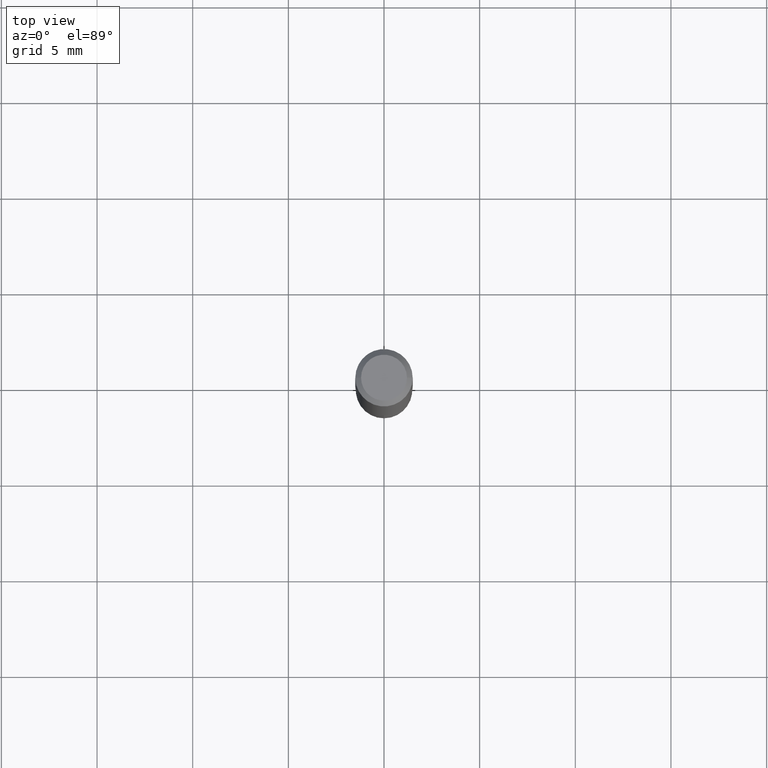
[diagram: clean part render]
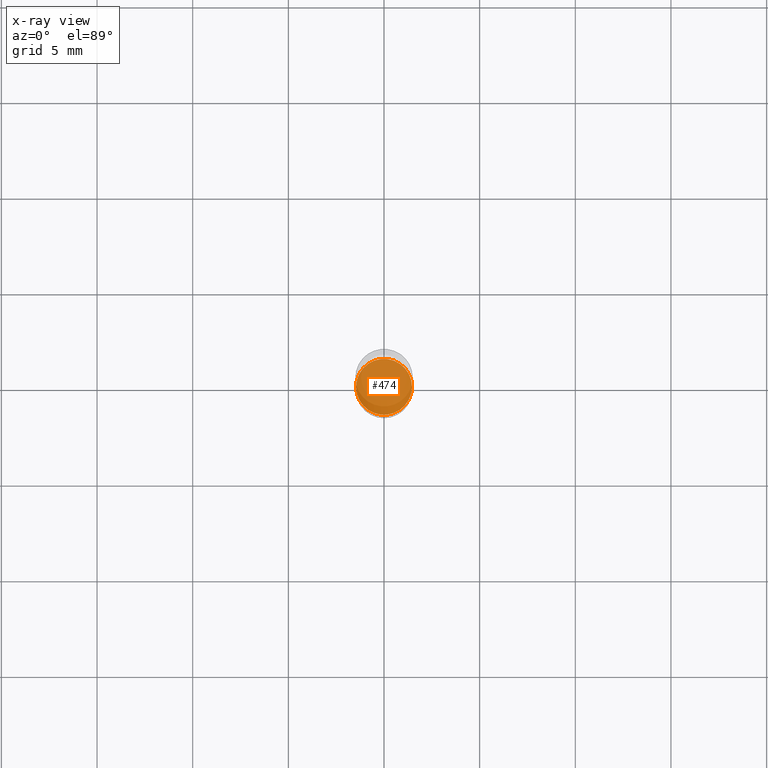
[diagram: x-ray — body ghosted, one internal face saturated and labeled with its STEP entity id]
A machine part, top view, then the same camera in x-ray: the body is ghosted and one INTERNAL B-rep face — a face not visible from any outside direction — is saturated and labeled: STEP entity #474.
In plain terms, the highlighted planar face has unit normal (-0, 0, 1).
Its self-contained STEP definition (entity closure, byte-faithful):
#2 = CIRCLE ( 'NONE', #252, 0.05754999999999999699 ) ;
#19 = DIRECTION ( 'NONE',  ( -2.445468806185136597E-29, 3.491481338843145583E-15, 1.000000000000000000 ) ) ;
#33 = DIRECTION ( 'NONE',  ( 1.000000000000000000, -6.982962677686262766E-15, 0.000000000000000000 ) ) ;
#59 = CIRCLE ( 'NONE', #240, 0.05754999999999999699 ) ;
#101 = DIRECTION ( 'NONE',  ( 1.000000000000000000, -6.982962677686265922E-15, 4.876176775795935793E-29 ) ) ;
#105 = CARTESIAN_POINT ( 'NONE',  ( 2.676565608369631794E-29, -3.821426325363822773E-15, -1.094499999999999806 ) ) ;
#110 = FACE_OUTER_BOUND ( 'NONE', #471, .T. ) ;
#135 = ORIENTED_EDGE ( 'NONE', *, *, #320, .F. ) ;
#154 = CARTESIAN_POINT ( 'NONE',  ( 0.05754999999999999699, -4.223295827464667094E-15, -1.094499999999999806 ) ) ;
#217 = VERTEX_POINT ( 'NONE', #314 ) ;
#231 = DIRECTION ( 'NONE',  ( -2.445468806185136597E-29, 3.491481338843145583E-15, 1.000000000000000000 ) ) ;
#240 = AXIS2_PLACEMENT_3D ( 'NONE', #396, #19, #287 ) ;
#241 = EDGE_CURVE ( 'NONE', #341, #217, #59, .T. ) ;
#252 = AXIS2_PLACEMENT_3D ( 'NONE', #472, #231, #33 ) ;
#261 = PLANE ( 'NONE',  #274 ) ;
#274 = AXIS2_PLACEMENT_3D ( 'NONE', #105, #480, #101 ) ;
#284 = ORIENTED_EDGE ( 'NONE', *, *, #241, .F. ) ;
#287 = DIRECTION ( 'NONE',  ( 1.000000000000000000, -6.982962677686262766E-15, 0.000000000000000000 ) ) ;
#314 = CARTESIAN_POINT ( 'NONE',  ( -0.05754999999999999699, -3.409859753759773986E-15, -1.094499999999999806 ) ) ;
#320 = EDGE_CURVE ( 'NONE', #217, #341, #2, .T. ) ;
#341 = VERTEX_POINT ( 'NONE', #154 ) ;
#396 = CARTESIAN_POINT ( 'NONE',  ( 2.676565608369631794E-29, -3.821426325363822773E-15, -1.094499999999999806 ) ) ;
#471 = EDGE_LOOP ( 'NONE', ( #284, #135 ) ) ;
#472 = CARTESIAN_POINT ( 'NONE',  ( 2.676565608369631794E-29, -3.821426325363822773E-15, -1.094499999999999806 ) ) ;
#474 = ADVANCED_FACE ( 'NONE', ( #110 ), #261, .F. ) ;
#480 = DIRECTION ( 'NONE',  ( -2.438088387897960049E-29, 3.491481338843145188E-15, 1.000000000000000000 ) ) ;